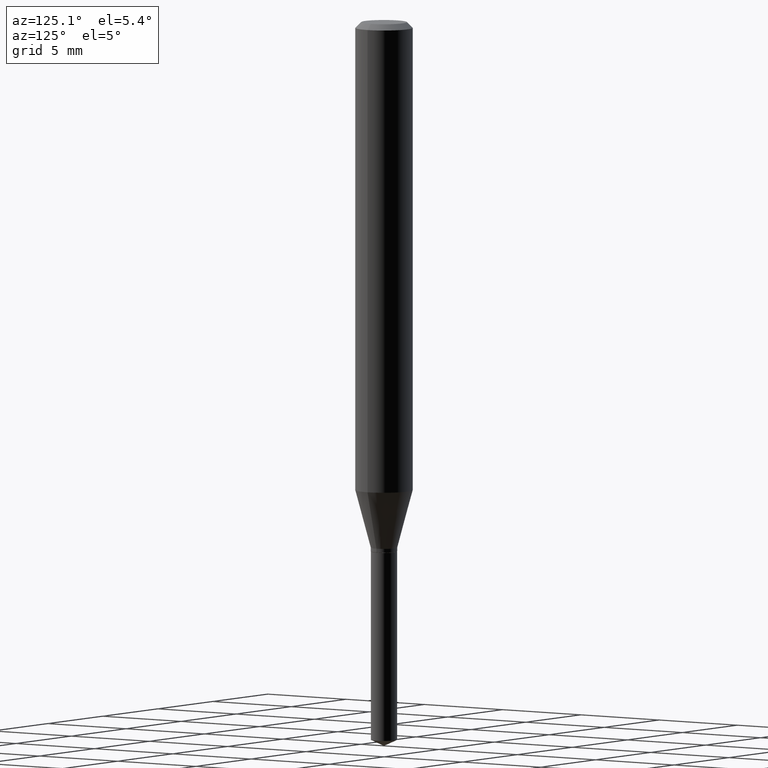
[diagram: clean part render]
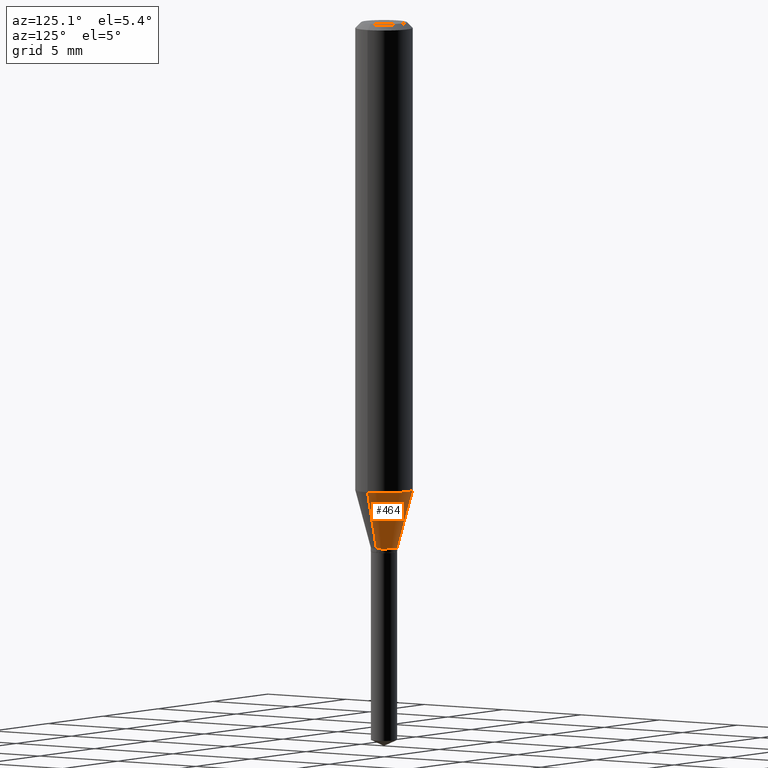
[diagram: same view with one face highlighted and labeled with its STEP entity id]
A machine part, auxiliary view. The second image highlights one B-rep face of the part: STEP entity #464.
In plain terms, the highlighted conical surface has half-angle 15 deg.
Its self-contained STEP definition (entity closure, byte-faithful):
#5 = CARTESIAN_POINT ( 'NONE',  ( 0.02715000000000000052, -3.982732763218375225E-15, -1.086399999999999810 ) ) ;
#21 = VECTOR ( 'NONE', #487, 39.37007874015747433 ) ;
#24 = EDGE_CURVE ( 'NONE', #164, #431, #451, .T. ) ;
#25 = LINE ( 'NONE', #334, #381 ) ;
#47 = ORIENTED_EDGE ( 'NONE', *, *, #92, .F. ) ;
#68 = CARTESIAN_POINT ( 'NONE',  ( -0.02715000000000000052, -3.613500602847929800E-15, -1.086399999999999810 ) ) ;
#92 = EDGE_CURVE ( 'NONE', #174, #326, #25, .T. ) ;
#136 = ORIENTED_EDGE ( 'NONE', *, *, #291, .F. ) ;
#140 = CIRCLE ( 'NONE', #213, 0.02715000000000000052 ) ;
#155 = CARTESIAN_POINT ( 'NONE',  ( 2.656757311039532110E-29, -3.793145326519192838E-15, -1.086399999999999810 ) ) ;
#164 = VERTEX_POINT ( 'NONE', #68 ) ;
#165 = CONICAL_SURFACE ( 'NONE', #488, 0.02715000000000000052, 0.2617993877991500740 ) ;
#174 = VERTEX_POINT ( 'NONE', #5 ) ;
#184 = FACE_OUTER_BOUND ( 'NONE', #336, .T. ) ;
#213 = AXIS2_PLACEMENT_3D ( 'NONE', #486, #382, #489 ) ;
#228 = DIRECTION ( 'NONE',  ( 1.000000000000000000, -6.982962677686266711E-15, 0.000000000000000000 ) ) ;
#230 = DIRECTION ( 'NONE',  ( -2.445468806185136597E-29, 3.491481338843145583E-15, 1.000000000000000000 ) ) ;
#260 = DIRECTION ( 'NONE',  ( 1.000000000000000000, -6.982962677686262766E-15, 0.000000000000000000 ) ) ;
#291 = EDGE_CURVE ( 'NONE', #326, #431, #466, .T. ) ;
#292 = CARTESIAN_POINT ( 'NONE',  ( -0.02715000000000000052, -3.600232973760325584E-15, -1.086399999999999810 ) ) ;
#310 = ORIENTED_EDGE ( 'NONE', *, *, #24, .T. ) ;
#313 = AXIS2_PLACEMENT_3D ( 'NONE', #384, #230, #228 ) ;
#326 = VERTEX_POINT ( 'NONE', #430 ) ;
#334 = CARTESIAN_POINT ( 'NONE',  ( 0.02715000000000000052, -3.982732763218375225E-15, -1.086399999999999810 ) ) ;
#336 = EDGE_LOOP ( 'NONE', ( #397, #310, #136, #47 ) ) ;
#340 = DIRECTION ( 'NONE',  ( -2.445468806185136597E-29, 3.491481338843145583E-15, 1.000000000000000000 ) ) ;
#363 = DIRECTION ( 'NONE',  ( 0.2588190451025213501, 1.565188264969621968E-15, 0.9659258262890682012 ) ) ;
#379 = CARTESIAN_POINT ( 'NONE',  ( -0.05905000000000011628, -2.957900535620157582E-15, -0.9673475792385526351 ) ) ;
#381 = VECTOR ( 'NONE', #363, 39.37007874015747433 ) ;
#382 = DIRECTION ( 'NONE',  ( -2.445468806185136597E-29, 3.491481338843145583E-15, 1.000000000000000000 ) ) ;
#384 = CARTESIAN_POINT ( 'NONE',  ( 2.365618329766585158E-29, -3.377476021086497075E-15, -0.9673475792385526351 ) ) ;
#397 = ORIENTED_EDGE ( 'NONE', *, *, #467, .T. ) ;
#430 = CARTESIAN_POINT ( 'NONE',  ( 0.05905000000000011628, -3.789819967203871995E-15, -0.9673475792385526351 ) ) ;
#431 = VERTEX_POINT ( 'NONE', #379 ) ;
#451 = LINE ( 'NONE', #292, #21 ) ;
#464 = ADVANCED_FACE ( 'NONE', ( #184 ), #165, .T. ) ;
#466 = CIRCLE ( 'NONE', #313, 0.05905000000000011628 ) ;
#467 = EDGE_CURVE ( 'NONE', #174, #164, #140, .T. ) ;
#486 = CARTESIAN_POINT ( 'NONE',  ( 2.656757311039532110E-29, -3.793145326519192838E-15, -1.086399999999999810 ) ) ;
#487 = DIRECTION ( 'NONE',  ( -0.2588190451025213501, 5.211531920934551042E-15, 0.9659258262890682012 ) ) ;
#488 = AXIS2_PLACEMENT_3D ( 'NONE', #155, #340, #260 ) ;
#489 = DIRECTION ( 'NONE',  ( 1.000000000000000000, -6.982962677686262766E-15, 0.000000000000000000 ) ) ;